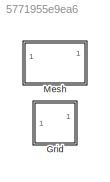
MODEL slx_5771955e9ea6
KIND library
CONFIG SolverName = VariableStepAuto
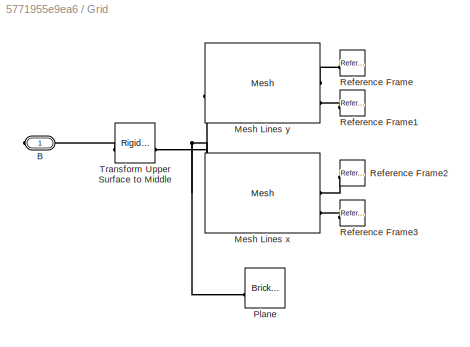
BLOCK [SubSystem] Grid
  VariantControl = Grid
BLOCK [PMIOPort] Grid/B
  Side = Right
BLOCK [Reference] Grid/Mesh Lines x  REF=$bdroot/Mesh
  SourceBlock = $bdroot/Mesh
  SourceType = Rectangular Mesh
BLOCK [Reference] Grid/Mesh Lines y   REF=$bdroot/Mesh
  SourceBlock = $bdroot/Mesh
  SourceType = Rectangular Mesh
BLOCK [Reference] Grid/Plane  REF=sm_lib/Body Elements/Brick Solid
  SourceBlock = sm_lib/Body Elements/Brick Solid
  SourceType = Brick Solid
BLOCK [Reference] Grid/Reference Frame  REF=sm_lib/Frames and
Transforms/Reference
Frame
  NameLocation = top
  SourceBlock = sm_lib/Frames and\nTransforms/Reference\nFrame
  SourceType = Reference\nFrame
BLOCK [Reference] Grid/Reference Frame1  REF=sm_lib/Frames and
Transforms/Reference
Frame
  NameLocation = top
  SourceBlock = sm_lib/Frames and\nTransforms/Reference\nFrame
  SourceType = Reference\nFrame
BLOCK [Reference] Grid/Reference Frame2  REF=sm_lib/Frames and
Transforms/Reference
Frame
  NameLocation = top
  SourceBlock = sm_lib/Frames and\nTransforms/Reference\nFrame
  SourceType = Reference\nFrame
BLOCK [Reference] Grid/Reference Frame3  REF=sm_lib/Frames and
Transforms/Reference
Frame
  SourceBlock = sm_lib/Frames and\nTransforms/Reference\nFrame
  SourceType = Reference\nFrame
BLOCK [Reference] Grid/Transform Upper Surface to Middle  REF=sm_lib/Frames and
Transforms/Rigid
Transform
  SourceBlock = sm_lib/Frames and\nTransforms/Rigid\nTransform
  SourceType = Rigid\nTransform
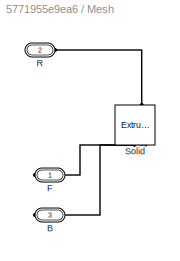
BLOCK [SubSystem] Mesh
BLOCK [PMIOPort] Mesh/B
  Port = 3
  Side = Right
BLOCK [PMIOPort] Mesh/F
  Side = Right
BLOCK [PMIOPort] Mesh/R
  Port = 2
  Side = Left
BLOCK [Reference] Mesh/Solid  REF=sm_lib/Body Elements/Extruded Solid
  NameLocation = right
  SourceBlock = sm_lib/Body Elements/Extruded Solid
  SourceType = Extruded Solid
PLINE Grid/B:RConn1 -- Grid/Transform Upper Surface to Middle:LConn1
PNET net1: Grid/Mesh Lines x:LConn1 -- Grid/Mesh Lines y :LConn1 -- Grid/Plane:RConn1 -- Grid/Transform Upper Surface to Middle:RConn1
PLINE Grid/Mesh Lines x:RConn1 -- Grid/Reference Frame2:RConn1
PLINE Grid/Mesh Lines x:RConn2 -- Grid/Reference Frame3:RConn1
PLINE Grid/Mesh Lines y :RConn1 -- Grid/Reference Frame:RConn1
PLINE Grid/Mesh Lines y :RConn2 -- Grid/Reference Frame1:RConn1
PLINE Mesh/B:RConn1 -- Mesh/Solid:LConn2
PLINE Mesh/F:RConn1 -- Mesh/Solid:LConn1
PLINE Mesh/R:RConn1 -- Mesh/Solid:RConn1
note: PNET lines group multi-terminal physical nets as a canonical sorted terminal list (undirected conserving connections); 2-terminal nets keep the pairwise PLINE form
